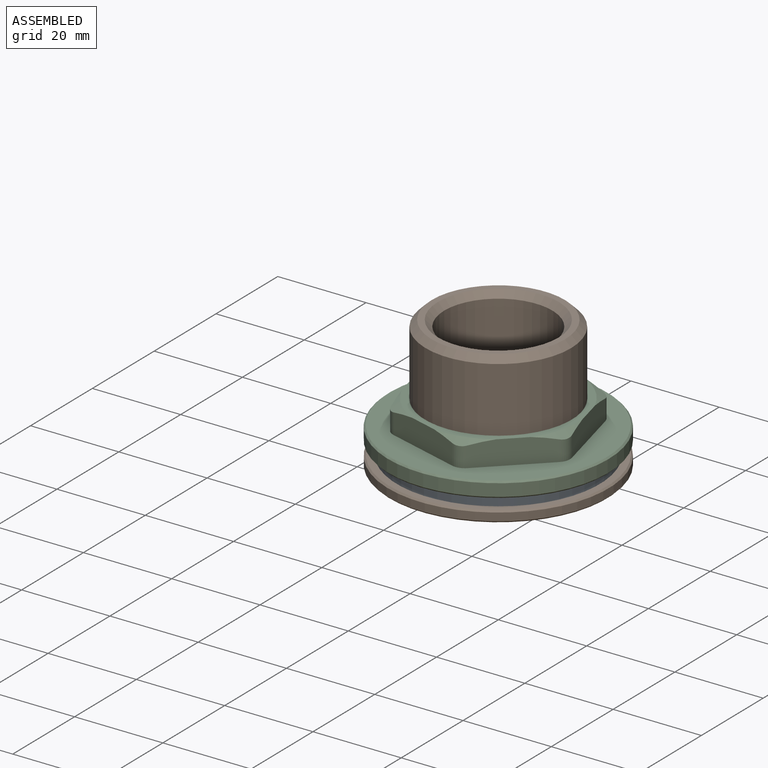
[diagram: assembled view]
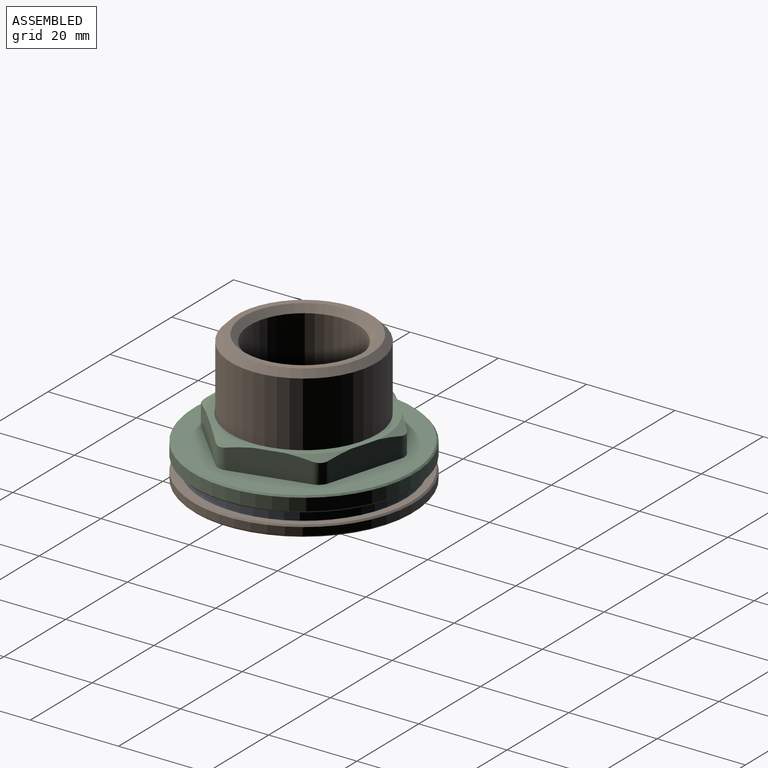
[diagram: assembled view, second angle]
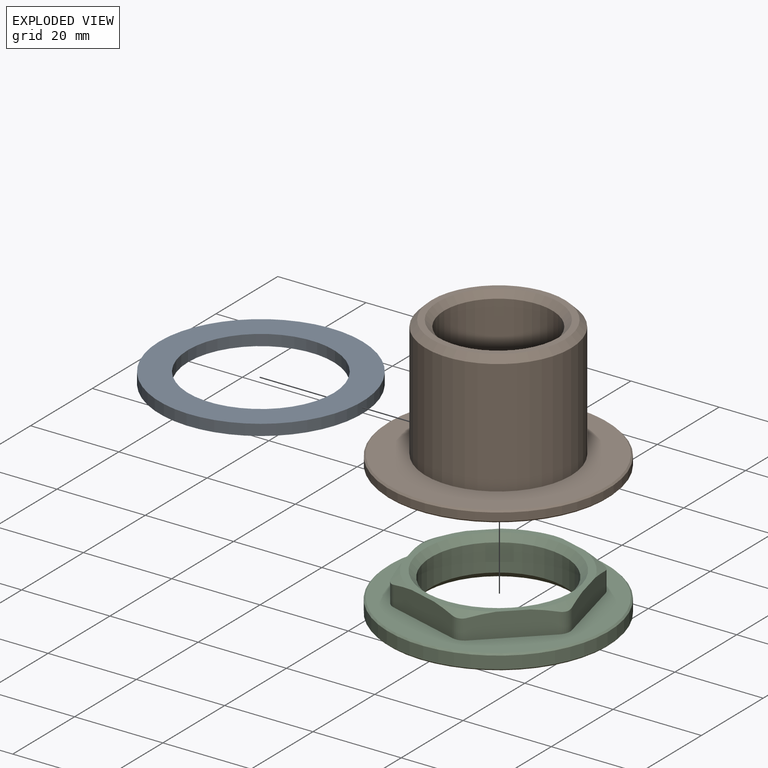
[diagram: exploded view]
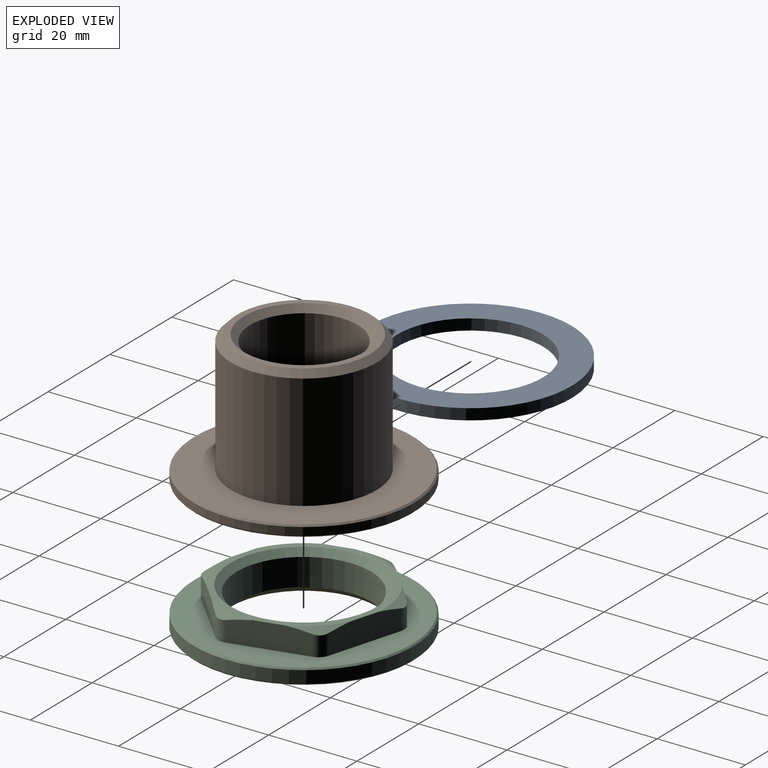
[diagram: exploded view, second angle]
ASSEMBLY  parts=3 mates=2
PART A: 4 faces, bbox 46x46x2.5 mm
  f0: plane 46x46mm, normal (0,0,1), area 806.6mm2, adj f1,f3
  f1: cylinder r=23mm len=46mm, axis (0,0,-1), area 361.3mm2, adj f0,f2
  f2: plane 46x46mm, normal (0,0,-1), area 806.6mm2, adj f1,f3
  f3: cylinder r=16.5mm len=33mm, axis (0,0,-1), area 259.2mm2, adj f0,f2
PART B: 11 faces, bbox 50x50x30 mm
  f0: plane 49.29x49.29mm, normal (0,0,1), area 1053.1mm2, adj f1,f10
  f1: cone r=25mm half-angle=45deg, axis (0,0,-1), area 78mm2, adj f0,f2
  f2: cylinder r=25mm len=50mm, axis (0,0,-1), area 281.6mm2, adj f1,f3
  f3: cone r=25mm half-angle=45deg, axis (0,0,1), area 78mm2, adj f2,f4
  f4: plane 49.29x49.29mm, normal (0,0,-1), area 1351.7mm2, adj f3,f5
  f5: cone r=13.31mm half-angle=45deg, axis (0,0,-1), area 120.5mm2, adj f4,f6
  f6: cylinder r=12.25mm len=27.53mm, axis (0,0,-1), area 2118.6mm2, adj f5,f7
  f7: cone r=13.66mm half-angle=45deg, axis (0,0,1), area 162.8mm2, adj f6,f8
  f8: plane 30.17x30.17mm, normal (0,0,1), area 128.4mm2, adj f7,f9
  f9: cone r=15.09mm half-angle=45deg, axis (0,0,-1), area 198.5mm2, adj f8,f10
  f10: cylinder r=16.5mm len=33mm, axis (0,0,-1), area 2704.4mm2, adj f0,f9
PART C: 27 faces, bbox 50.5x50.5x9.5 mm
  f0: plane 36.53x35.94mm, normal (0,0,1), area 167.9mm2, adj f1,f2,f3,f4,f5,f6,f10,f15
  f1: cone r=18.26mm half-angle=62.6deg, axis (0,0,-1), area 15.8mm2, adj f0,f15,f16,f22
  f2: cone r=18.26mm half-angle=62.6deg, axis (0,0,-1), area 15.8mm2, adj f0,f16,f17,f23
  f3: cone r=18.26mm half-angle=62.6deg, axis (0,0,-1), area 15.8mm2, adj f0,f17,f18,f24
  f4: cone r=18.26mm half-angle=62.6deg, axis (0,0,-1), area 15.8mm2, adj f0,f15,f19,f21
  f5: cone r=18.26mm half-angle=62.6deg, axis (0,0,-1), area 15.8mm2, adj f0,f19,f20,f25
  f6: cone r=18.26mm half-angle=62.6deg, axis (0,0,-1), area 15.8mm2, adj f0,f18,f20,f26
  f7: plane 49.29x49.29mm, normal (0,0,-1), area 1035.9mm2, adj f8,f14
  f8: cone r=15.25mm half-angle=45deg, axis (0,0,-1), area 200.5mm2, adj f7,f9
  f9: cylinder r=15.25mm len=30.5mm, axis (0,0,1), area 591.4mm2, adj f8,f10
  f10: cone r=16.66mm half-angle=45deg, axis (0,0,1), area 200.5mm2, adj f0,f9
  f11: plane 49.29x49.29mm, normal (0,0,1), area 792.6mm2, adj f12,f15,f16,f17,f18,f19,f20,f21
  f12: cone r=25mm half-angle=45deg, axis (0,0,-1), area 78mm2, adj f11,f13
  f13: cylinder r=25mm len=50mm, axis (0,0,1), area 438.7mm2, adj f12,f14
  f14: cone r=25mm half-angle=45deg, axis (0,0,1), area 78mm2, adj f7,f13
  f15: plane 17.75x5.96mm, normal (1,0,0), area 91mm2, adj f0,f1,f4,f11,f21,f22
  f16: plane 15.42x9.1mm, normal (0.5,-0.87,0), area 91mm2, adj f0,f1,f2,f11,f22,f23
  f17: plane 15.42x9.1mm, normal (-0.5,-0.87,0), area 91mm2, adj f0,f2,f3,f11,f23,f24
  f18: plane 17.75x5.96mm, normal (-1,0,0), area 91mm2, adj f0,f3,f6,f11,f24,f26
  f19: plane 15.42x9.1mm, normal (0.5,0.87,0), area 91mm2, adj f0,f4,f5,f11,f21,f25
  f20: plane 15.42x9.1mm, normal (-0.5,0.87,0), area 91mm2, adj f0,f5,f6,f11,f25,f26
  f21: cylinder r=3mm len=4.63mm, axis (0,0,1), area 14.5mm2, adj f4,f11,f15,f19
  f22: cylinder r=3mm len=4.63mm, axis (0,0,1), area 14.5mm2, adj f1,f11,f15,f16
  f23: cylinder r=3mm len=4.63mm, axis (0,0,1), area 14.5mm2, adj f2,f11,f16,f17
  f24: cylinder r=3mm len=4.63mm, axis (0,0,1), area 14.5mm2, adj f3,f11,f17,f18
  f25: cylinder r=3mm len=4.63mm, axis (0,0,1), area 14.5mm2, adj f5,f11,f19,f20
  f26: cylinder r=3mm len=4.63mm, axis (0,0,1), area 14.5mm2, adj f6,f11,f18,f20
PLACE A at identity fixed
PLACE B at identity
PLACE C rot(axis=(0,0,1),13.9deg) t=(0,0,0)mm
MATE cylindrical A.f1 <-> C.f1  axis (0,0,1) through (0,0,-10)mm
MATE fastened A.f1 <-> B.f1  axis (0,0,-1) through (0,0,-12.5)mm
